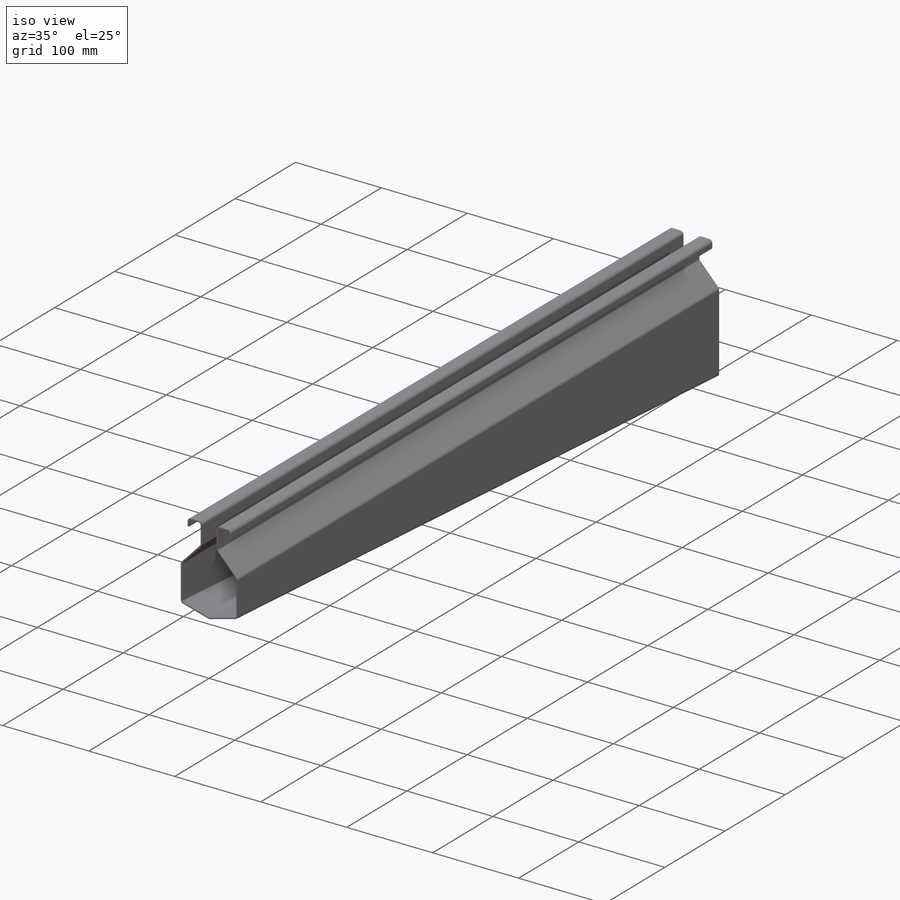
[diagram: iso view]
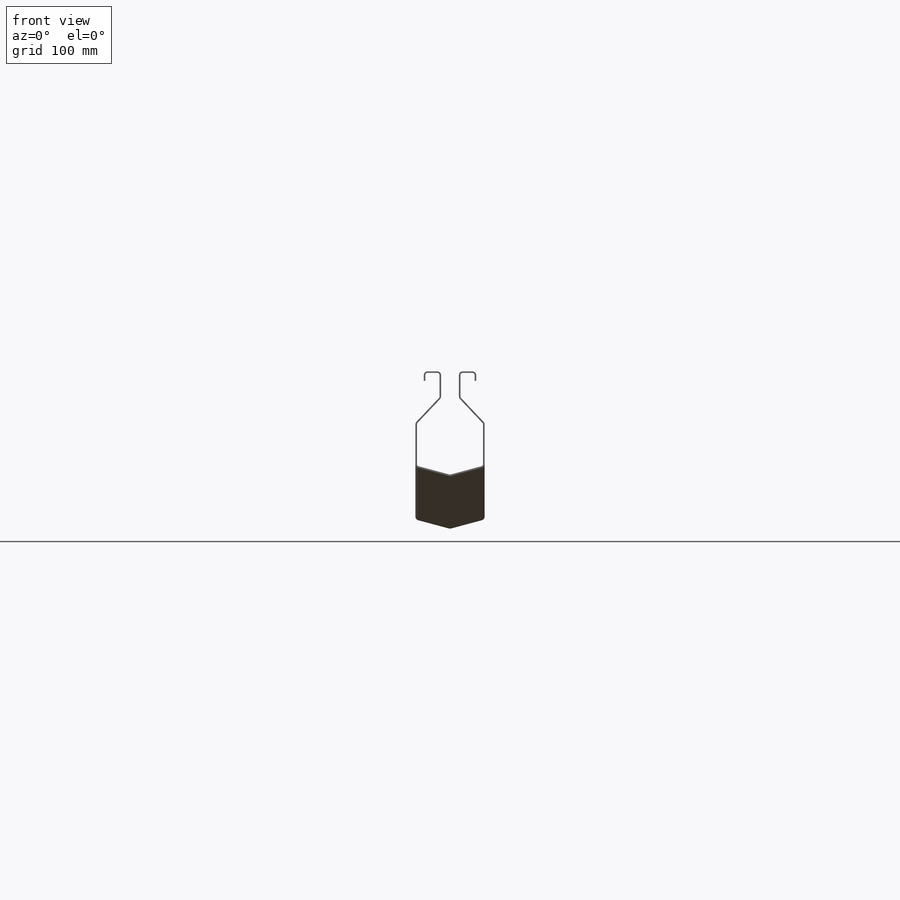
[diagram: front view]
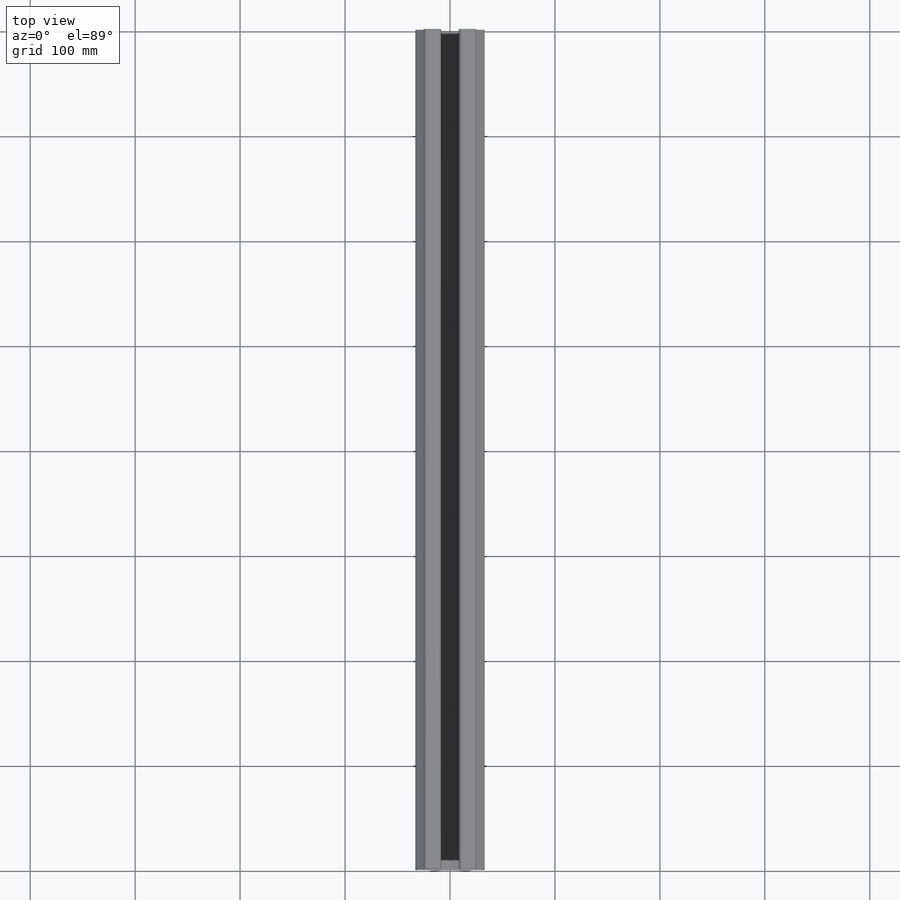
[diagram: top view]
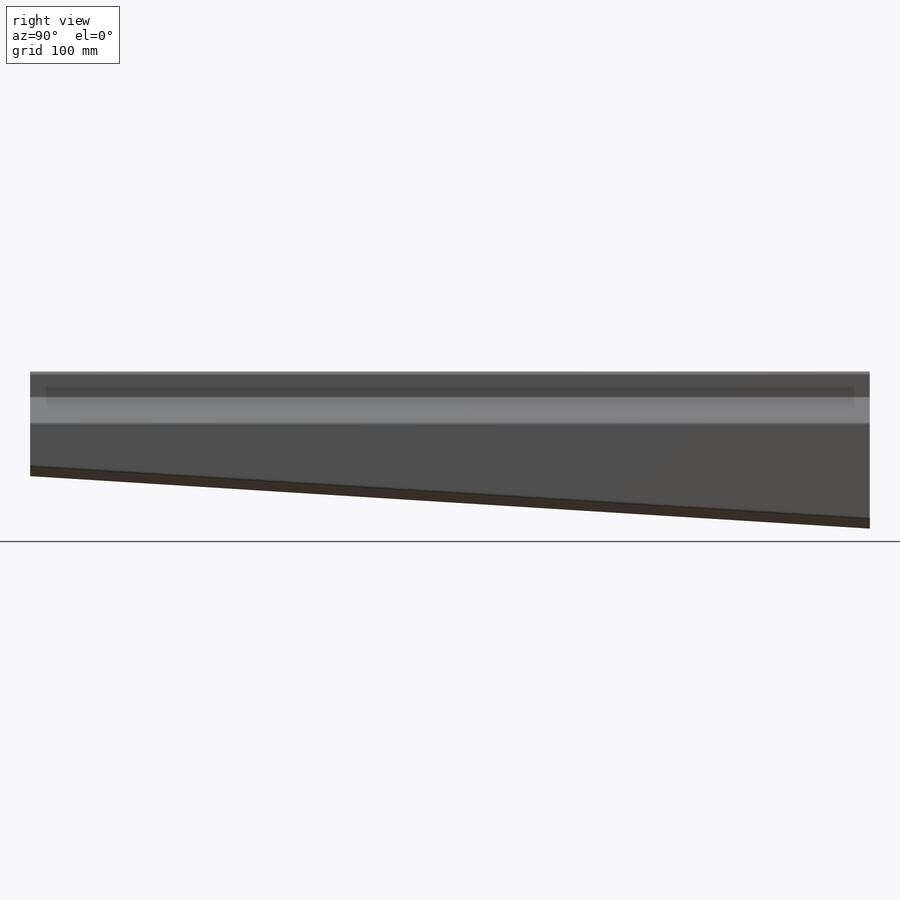
[diagram: right view]
SOLIDWORKS PART (.sldprt)
format: sldprt  version: not decoded by parser v0  size: 392,192 bytes
history: native  units: mm
features: sketch x4, plane x3, material x1, extrude x1, chamfer x1, cut_extrude x1, mirror x1, sheet_metal_op x1 + 13 further entries (+8 scaffold rows collapsed; 1 parser-record rows omitted)
feature tree (35):
  scaffold x8  (default folders/planes/origin — collapsed)
  material  "Allgemein"
  plane  "Vorderansicht"
  plane  "Draufsicht"
  plane  "Seitenansicht"
  "Y-Achse"
  "Z-Achse"
  sketch  "Skizze2"  dims[D1=100.0mm D2=150.0mm D3=800.0mm]
  extrude  "Aufsatz-Linear austragen1"  Depth=66mm
  chamfer  "Fase1"  Distance=33mm Angle=15deg
  sketch  "Skizze3"  dims[D1=1.5mm D2=1.5mm D3=10.0mm D4=15.0mm]
  cut_extrude  "Schnitt-Linear austragen1"  [1 undecoded]
  mirror  "Spiegeln1"
  sheet_metal_op  "Blech1"  Biegung-Winkel2=0 Biegung-Winkel3=0 Biegung-Winkel4=0 Biegung-Winkel5=0 Biegung-Winkel6=0 Biegung-Winkel7=0 Biegung-Winkel8=0 Biegung-Winkel9=0 Biegung-Winkel10=0 Biegung-Winkel11=0
  "Abwicklung1"
  sketch  "Biegung-Linien1"
  sketch  "Rahmen1"
  "Abwickeln-<Biegung-Winkel2>1"
  "Abwickeln-<Biegung-Winkel3>1"
  "Abwickeln-<Biegung-Winkel4>1"
  "Abwickeln-<Biegung-Winkel5>1"
  "Abwickeln-<Biegung-Winkel6>1"
  "Abwickeln-<Biegung-Winkel7>1"
  "Abwickeln-<Biegung-Winkel8>1"
  "Abwickeln-<Biegung-Winkel9>1"
  "Abwickeln-<Biegung-Winkel10>1"
  "Abwickeln-<Biegung-Winkel11>1"
  parser-record x1  (decoder bookkeeping rows leaked as tree rows — omitted from the tree; the rows remain in map.json)
decode coverage: 5 of 9 modeling features carry decoded parameters; 13 rows unclassified (native names shown)
note: 1 parameter value undecoded
note: suppression state not decoded; provenance and decode notes live in map.json
